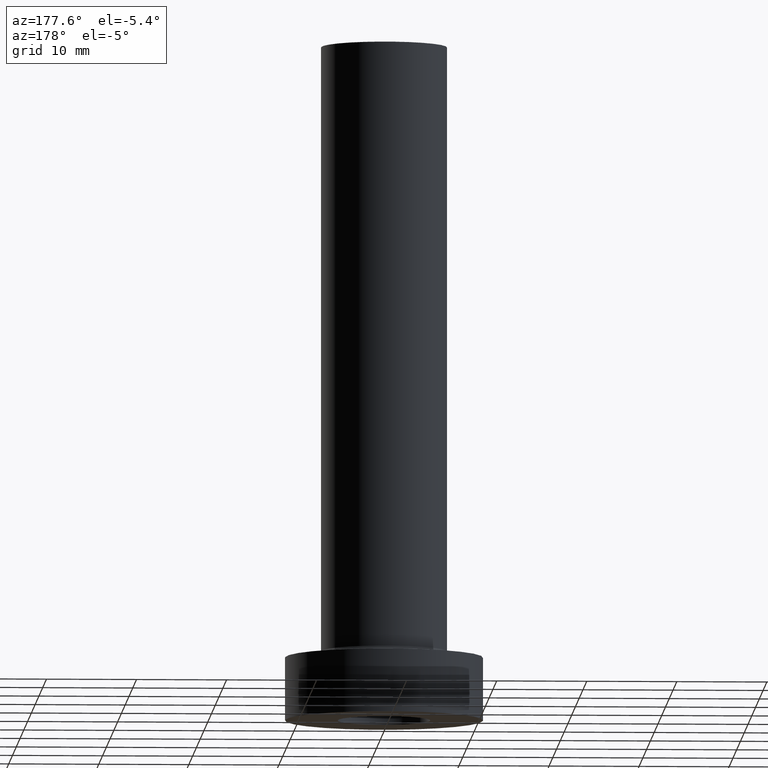
[diagram: clean part render]
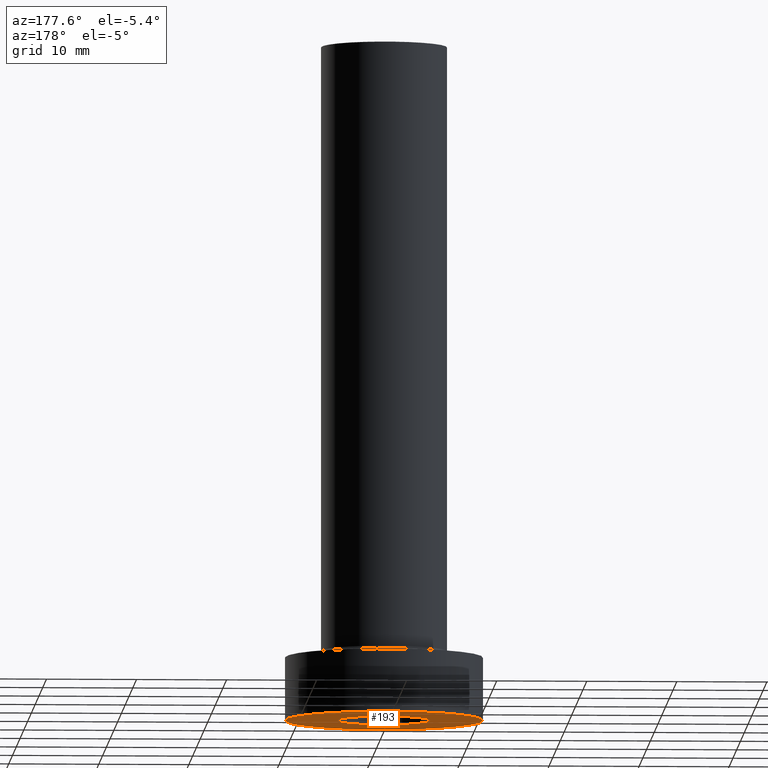
[diagram: same view with one face highlighted and labeled with its STEP entity id]
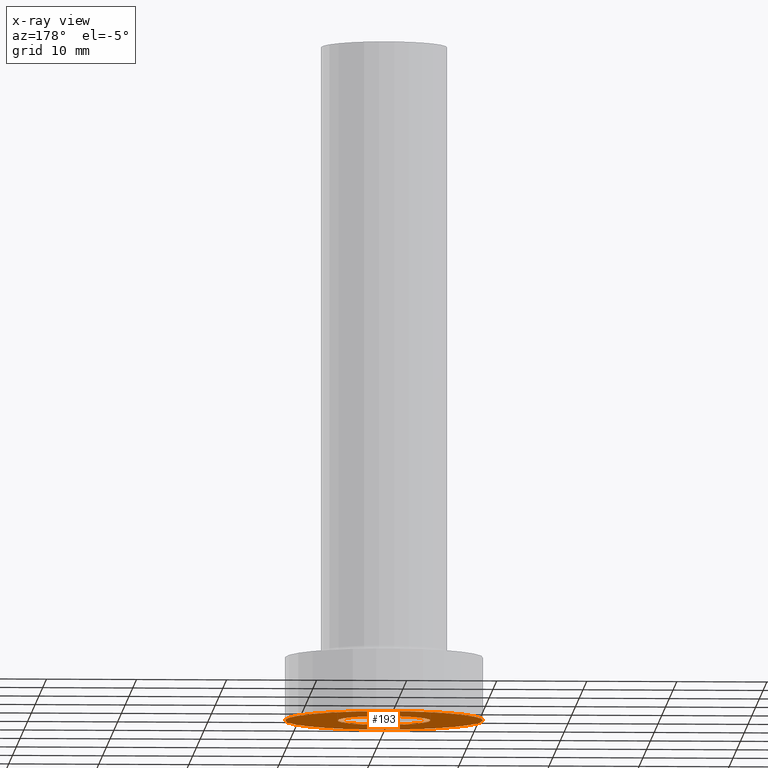
[diagram: x-ray of the same camera — body ghosted, the highlighted face saturated]
A machine part, auxiliary view. The second image highlights one B-rep face of the part: STEP entity #193.
The next image is the same camera in x-ray: the body ghosted, the highlighted face saturated — about 0% of this face is hidden behind the body in this view.
In plain terms, the highlighted planar face has unit normal (0, 0, 1).
Its self-contained STEP definition (entity closure, byte-faithful):
#22 = PLANE ( 'NONE',  #225 ) ;
#24 = VERTEX_POINT ( 'NONE', #81 ) ;
#28 = FACE_BOUND ( 'NONE', #328, .T. ) ;
#39 = CARTESIAN_POINT ( 'NONE',  ( -5.150000000000001243, 0.000000000000000000, 0.000000000000000000 ) ) ;
#64 = VERTEX_POINT ( 'NONE', #39 ) ;
#77 = CARTESIAN_POINT ( 'NONE',  ( 0.000000000000000000, 0.000000000000000000, 0.000000000000000000 ) ) ;
#81 = CARTESIAN_POINT ( 'NONE',  ( -11.00000000000000000, 0.000000000000000000, 0.000000000000000000 ) ) ;
#82 = DIRECTION ( 'NONE',  ( 1.000000000000000000, 0.000000000000000000, 0.000000000000000000 ) ) ;
#109 = FACE_OUTER_BOUND ( 'NONE', #171, .T. ) ;
#113 = DIRECTION ( 'NONE',  ( -0.000000000000000000, -0.000000000000000000, -1.000000000000000000 ) ) ;
#131 = VERTEX_POINT ( 'NONE', #139 ) ;
#138 = DIRECTION ( 'NONE',  ( 0.000000000000000000, 0.000000000000000000, 1.000000000000000000 ) ) ;
#139 = CARTESIAN_POINT ( 'NONE',  ( 5.150000000000001243, 6.306931015608869596E-16, 0.000000000000000000 ) ) ;
#155 = CIRCLE ( 'NONE', #354, 11.00000000000000000 ) ;
#167 = ORIENTED_EDGE ( 'NONE', *, *, #338, .F. ) ;
#171 = EDGE_LOOP ( 'NONE', ( #201, #167 ) ) ;
#185 = DIRECTION ( 'NONE',  ( 0.000000000000000000, 0.000000000000000000, 1.000000000000000000 ) ) ;
#193 = ADVANCED_FACE ( 'NONE', ( #28, #109 ), #22, .F. ) ;
#200 = ORIENTED_EDGE ( 'NONE', *, *, #348, .F. ) ;
#201 = ORIENTED_EDGE ( 'NONE', *, *, #408, .F. ) ;
#218 = DIRECTION ( 'NONE',  ( 1.000000000000000000, 0.000000000000000000, 0.000000000000000000 ) ) ;
#222 = CARTESIAN_POINT ( 'NONE',  ( 0.000000000000000000, 0.000000000000000000, 0.000000000000000000 ) ) ;
#225 = AXIS2_PLACEMENT_3D ( 'NONE', #380, #138, #423 ) ;
#237 = AXIS2_PLACEMENT_3D ( 'NONE', #326, #113, #289 ) ;
#247 = VERTEX_POINT ( 'NONE', #452 ) ;
#289 = DIRECTION ( 'NONE',  ( 1.000000000000000000, 0.000000000000000000, 0.000000000000000000 ) ) ;
#323 = CIRCLE ( 'NONE', #454, 5.150000000000001243 ) ;
#326 = CARTESIAN_POINT ( 'NONE',  ( 0.000000000000000000, 0.000000000000000000, 0.000000000000000000 ) ) ;
#328 = EDGE_LOOP ( 'NONE', ( #413, #200 ) ) ;
#337 = CIRCLE ( 'NONE', #237, 5.150000000000001243 ) ;
#338 = EDGE_CURVE ( 'NONE', #247, #24, #372, .T. ) ;
#348 = EDGE_CURVE ( 'NONE', #131, #64, #337, .T. ) ;
#354 = AXIS2_PLACEMENT_3D ( 'NONE', #399, #396, #82 ) ;
#359 = DIRECTION ( 'NONE',  ( 1.000000000000000000, 0.000000000000000000, 0.000000000000000000 ) ) ;
#366 = DIRECTION ( 'NONE',  ( -0.000000000000000000, -0.000000000000000000, -1.000000000000000000 ) ) ;
#372 = CIRCLE ( 'NONE', #440, 11.00000000000000000 ) ;
#380 = CARTESIAN_POINT ( 'NONE',  ( 0.000000000000000000, 0.000000000000000000, 0.000000000000000000 ) ) ;
#396 = DIRECTION ( 'NONE',  ( 0.000000000000000000, 0.000000000000000000, 1.000000000000000000 ) ) ;
#399 = CARTESIAN_POINT ( 'NONE',  ( 0.000000000000000000, 0.000000000000000000, 0.000000000000000000 ) ) ;
#408 = EDGE_CURVE ( 'NONE', #24, #247, #155, .T. ) ;
#413 = ORIENTED_EDGE ( 'NONE', *, *, #431, .F. ) ;
#423 = DIRECTION ( 'NONE',  ( 1.000000000000000000, 0.000000000000000000, -0.000000000000000000 ) ) ;
#431 = EDGE_CURVE ( 'NONE', #64, #131, #323, .T. ) ;
#440 = AXIS2_PLACEMENT_3D ( 'NONE', #77, #185, #359 ) ;
#452 = CARTESIAN_POINT ( 'NONE',  ( 11.00000000000000000, 1.347111479062088405E-15, 0.000000000000000000 ) ) ;
#454 = AXIS2_PLACEMENT_3D ( 'NONE', #222, #366, #218 ) ;